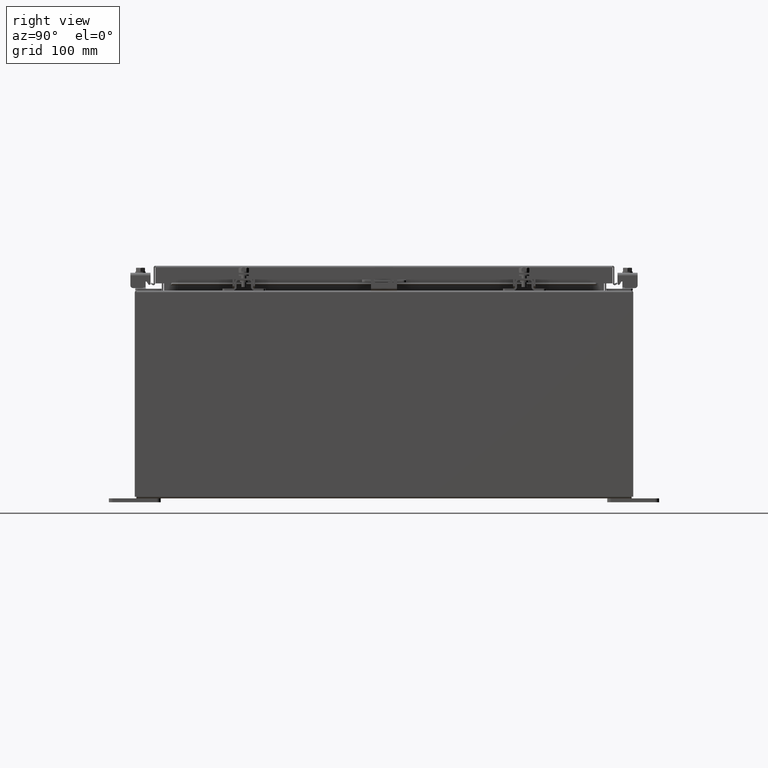
[diagram: clean part render]
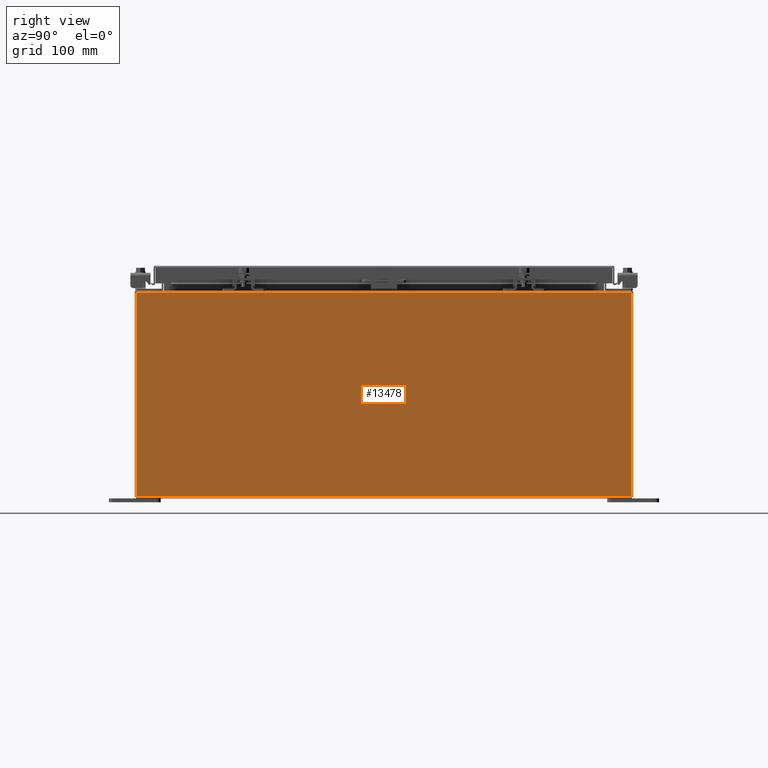
[diagram: same view with one face highlighted and labeled with its STEP entity id]
A machine part, right view. The second image highlights one B-rep face of the part: STEP entity #13478.
In plain terms, the highlighted planar face has unit normal (-1, 0, 0).
Its self-contained STEP definition (entity closure, byte-faithful):
#1378 = VECTOR ( 'NONE', #22198, 39.37007874015748100 ) ;
#2587 = LINE ( 'NONE', #24183, #15090 ) ;
#2641 = VECTOR ( 'NONE', #20539, 39.37007874015748100 ) ;
#4737 = CARTESIAN_POINT ( 'NONE',  ( 10.00000000000003600, 11.92530000000000000, 9.837599999999994800 ) ) ;
#5905 = CARTESIAN_POINT ( 'NONE',  ( 10.00000000000000000, 0.0000000000000000000, -3.549164226462045900E-014 ) ) ;
#7238 = EDGE_CURVE ( 'NONE', #26485, #30705, #15910, .T. ) ;
#7263 = LINE ( 'NONE', #4737, #1378 ) ;
#8732 = CARTESIAN_POINT ( 'NONE',  ( 10.00000000000003600, -11.92530000000000000, 9.837600000000001900 ) ) ;
#9193 = VERTEX_POINT ( 'NONE', #11581 ) ;
#10803 = CARTESIAN_POINT ( 'NONE',  ( 10.00000000000000000, -11.92530000000000000, 0.01299999999999984300 ) ) ;
#10942 = PLANE ( 'NONE',  #13373 ) ;
#11083 = FACE_OUTER_BOUND ( 'NONE', #17927, .T. ) ;
#11581 = CARTESIAN_POINT ( 'NONE',  ( 10.00000000000003600, 11.92529999999999800, 9.837599999999994800 ) ) ;
#13373 = AXIS2_PLACEMENT_3D ( 'NONE', #5905, #28471, #13431 ) ;
#13431 = DIRECTION ( 'NONE',  ( 3.523082860860887800E-015, 0.0000000000000000000, 1.000000000000000000 ) ) ;
#13478 = ADVANCED_FACE ( 'NONE', ( #11083 ), #10942, .F. ) ;
#15090 = VECTOR ( 'NONE', #26688, 39.37007874015748100 ) ;
#15910 = LINE ( 'NONE', #30569, #2641 ) ;
#16614 = ORIENTED_EDGE ( 'NONE', *, *, #26653, .T. ) ;
#17785 = VECTOR ( 'NONE', #23299, 39.37007874015748100 ) ;
#17927 = EDGE_LOOP ( 'NONE', ( #27225, #22194, #30044, #16614 ) ) ;
#18310 = CARTESIAN_POINT ( 'NONE',  ( 10.00000000000000000, 11.92530000000000000, -3.286577851208143900E-014 ) ) ;
#20539 = DIRECTION ( 'NONE',  ( -0.0000000000000000000, -1.000000000000000000, -0.0000000000000000000 ) ) ;
#22194 = ORIENTED_EDGE ( 'NONE', *, *, #24749, .T. ) ;
#22198 = DIRECTION ( 'NONE',  ( -0.0000000000000000000, -1.000000000000000000, -0.0000000000000000000 ) ) ;
#22564 = CARTESIAN_POINT ( 'NONE',  ( 10.00000000000000000, 11.92529999999999800, 0.01299999999999984700 ) ) ;
#23299 = DIRECTION ( 'NONE',  ( 3.523082860860888200E-015, -2.201926788038055100E-016, 1.000000000000000000 ) ) ;
#24183 = CARTESIAN_POINT ( 'NONE',  ( 10.00000000000000000, -11.92530000000000000, -3.549164226462045900E-014 ) ) ;
#24749 = EDGE_CURVE ( 'NONE', #31493, #30705, #2587, .T. ) ;
#26485 = VERTEX_POINT ( 'NONE', #22564 ) ;
#26653 = EDGE_CURVE ( 'NONE', #26485, #9193, #31125, .T. ) ;
#26688 = DIRECTION ( 'NONE',  ( -3.523082860860888200E-015, 0.0000000000000000000, -1.000000000000000000 ) ) ;
#27225 = ORIENTED_EDGE ( 'NONE', *, *, #30388, .T. ) ;
#28471 = DIRECTION ( 'NONE',  ( -1.000000000000000000, 0.0000000000000000000, 3.523082860860887800E-015 ) ) ;
#30044 = ORIENTED_EDGE ( 'NONE', *, *, #7238, .F. ) ;
#30388 = EDGE_CURVE ( 'NONE', #9193, #31493, #7263, .T. ) ;
#30569 = CARTESIAN_POINT ( 'NONE',  ( 10.00000000000000000, -11.92530000000000000, 0.01299999999999984700 ) ) ;
#30705 = VERTEX_POINT ( 'NONE', #10803 ) ;
#31125 = LINE ( 'NONE', #18310, #17785 ) ;
#31493 = VERTEX_POINT ( 'NONE', #8732 ) ;